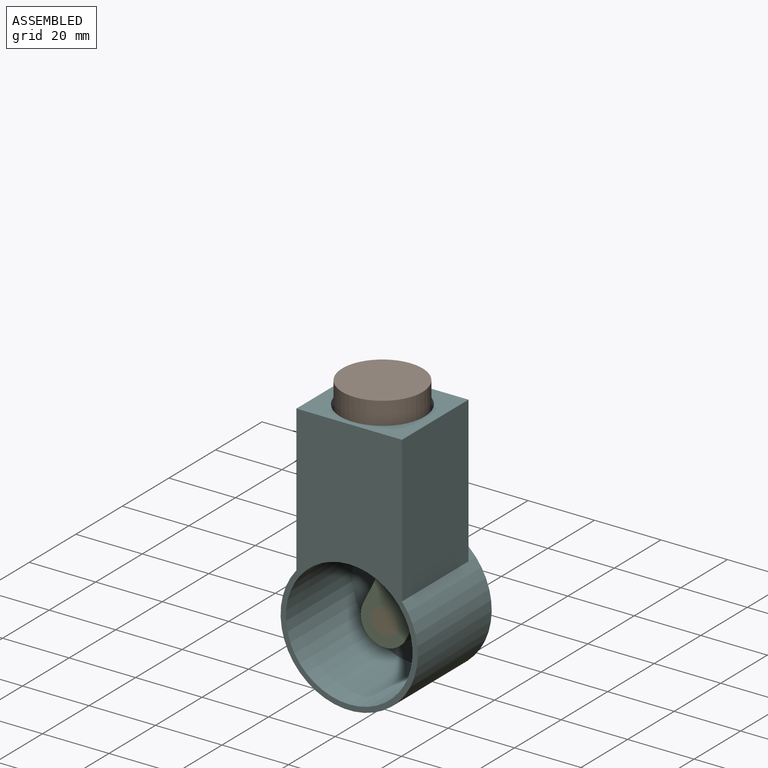
[diagram: assembled view]
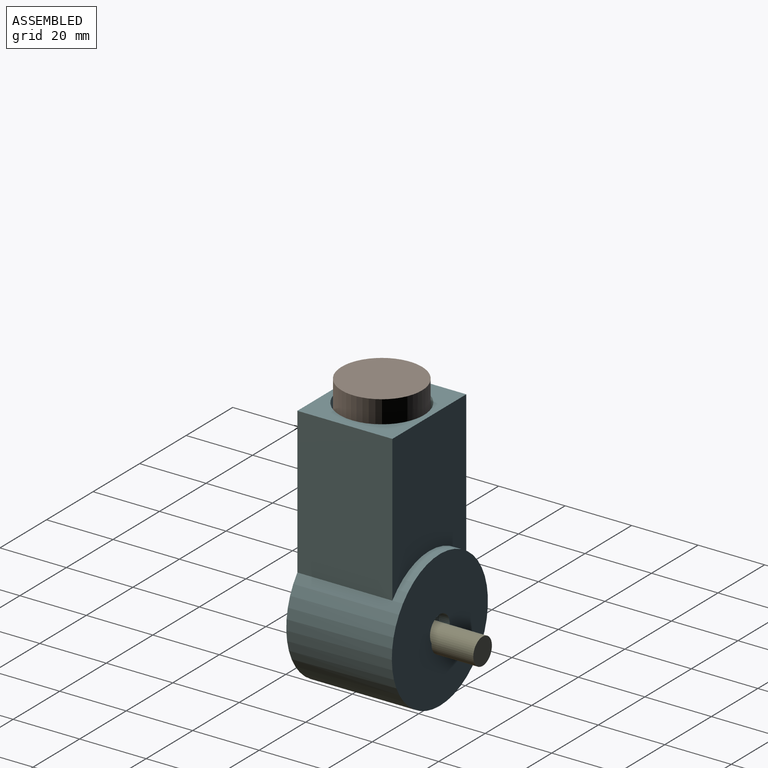
[diagram: assembled view, second angle]
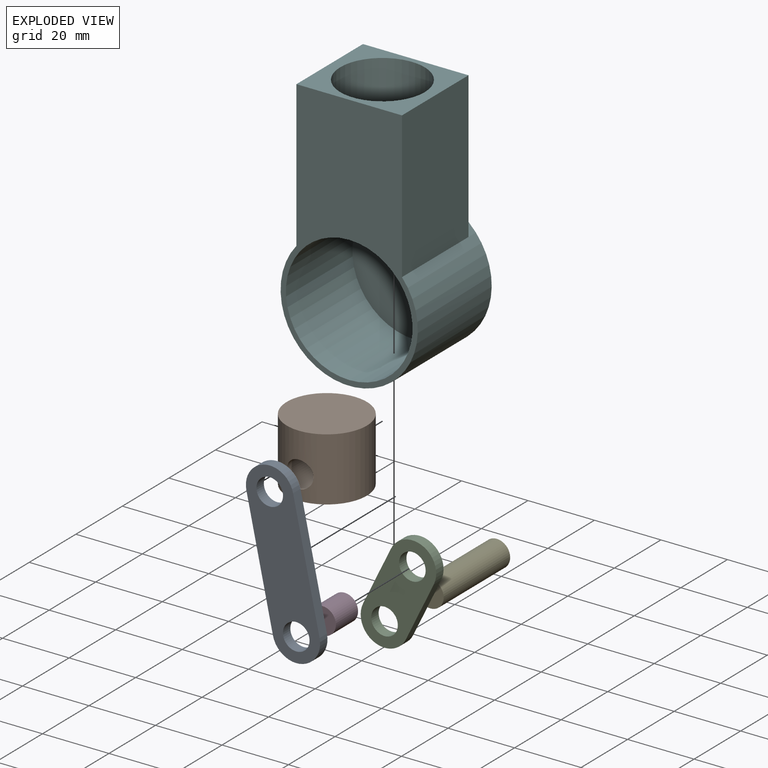
[diagram: exploded view]
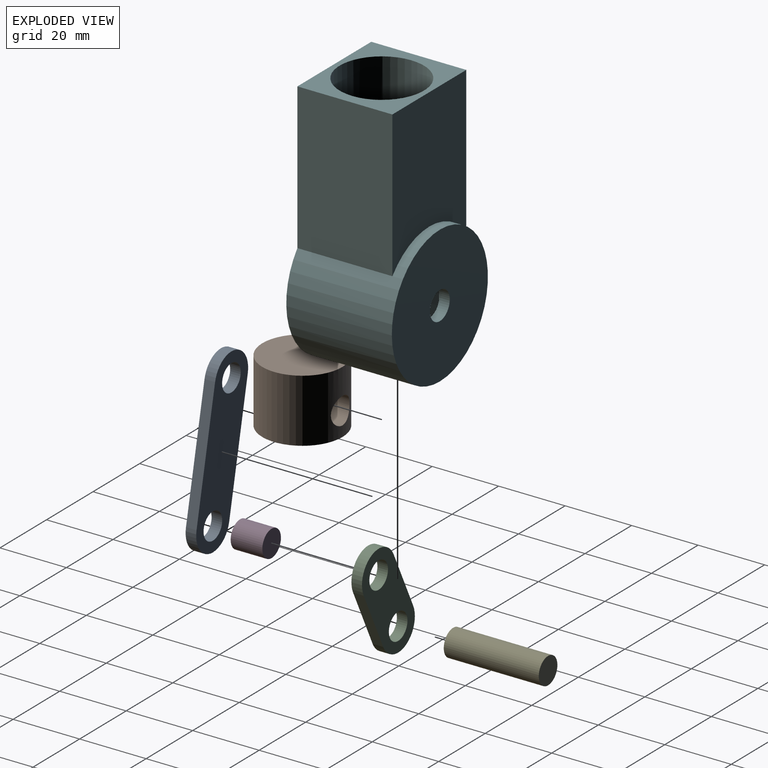
[diagram: exploded view, second angle]
ASSEMBLY  parts=6 mates=5
PART A: 8 faces, bbox 14.4x3.2x52.5 mm
  f0: plane 38.1x3.18mm, normal (-1,0,0), area 121mm2, adj f1,f4,f6,f7
  f1: cylinder r=7.18mm len=14.35mm, axis (0,1,0), area 71.6mm2, adj f0,f2,f6,f7
  f2: plane 38.1x3.18mm, normal (1,0,0), area 121mm2, adj f1,f4,f6,f7
  f3: cylinder r=4mm len=8mm, axis (0,1,0), area 79.8mm2, adj f6,f7
  f4: cylinder r=7.18mm len=14.35mm, axis (0,1,0), area 71.6mm2, adj f0,f2,f6,f7
  f5: cylinder r=4mm len=8mm, axis (0,1,0), area 79.8mm2, adj f6,f7
  f6: plane 52.45x14.35mm, normal (0,-1,0), area 608mm2, adj f0,f1,f2,f3,f4,f5
  f7: plane 52.45x14.35mm, normal (0,1,0), area 608mm2, adj f0,f1,f2,f3,f4,f5
PART B: 10 faces, bbox 24.1x24.1x19.1 mm
  f0: cylinder r=4mm len=10.35mm, axis (-1,0,0), area 251.6mm2, adj f1,f6
  f1: cylinder r=12.06mm len=24.13mm, axis (0,0,-1), area 1342.2mm2, adj f0,f2,f3,f4
  f2: plane 24.13x24.13mm, normal (0,0,1), area 457.3mm2, adj f1
  f3: plane 24.13x24.13mm, normal (0,0,-1), area 397.2mm2, adj f1,f5,f6,f7,f8
  f4: cylinder r=4mm len=10.35mm, axis (-1,0,0), area 251.6mm2, adj f1,f8
  f5: plane 12.7x3.43mm, normal (0,-1,0), area 43.5mm2, adj f3,f6,f8,f9
  f6: plane 17.54x12.7mm, normal (-1,0,0), area 172.4mm2, adj f0,f3,f5,f7,f9
  f7: plane 12.7x3.43mm, normal (0,1,0), area 43.5mm2, adj f3,f6,f8,f9
  f8: plane 17.54x12.7mm, normal (1,0,0), area 172.4mm2, adj f3,f4,f5,f7,f9
  f9: plane 17.54x3.43mm, normal (0,0,-1), area 60.1mm2, adj f5,f6,f7,f8
PART C: 8 faces, bbox 14.4x3.2x33.4 mm
  f0: plane 19.05x3.18mm, normal (-1,0,0), area 60.5mm2, adj f1,f3,f6,f7
  f1: cylinder r=7.17mm len=14.35mm, axis (0,1,0), area 71.6mm2, adj f0,f2,f6,f7
  f2: plane 19.05x3.18mm, normal (1,0,0), area 60.5mm2, adj f1,f3,f6,f7
  f3: cylinder r=7.17mm len=14.35mm, axis (0,1,0), area 71.6mm2, adj f0,f2,f6,f7
  f4: cylinder r=4mm len=8mm, axis (0,1,0), area 79.8mm2, adj f6,f7
  f5: cylinder r=4mm len=8mm, axis (0,1,0), area 79.8mm2, adj f6,f7
  f6: plane 33.4x14.35mm, normal (0,-1,0), area 334.6mm2, adj f0,f1,f2,f3,f4,f5
  f7: plane 33.4x14.35mm, normal (0,1,0), area 334.6mm2, adj f0,f1,f2,f3,f4,f5
PART D: 3 faces, bbox 8x9.5x8 mm
  f0: cylinder r=4mm len=9.53mm, axis (0,1,0), area 239.4mm2, adj f1,f2
  f1: plane 8x8mm, normal (0,-1,0), area 50.3mm2, adj f0
  f2: plane 8x8mm, normal (0,1,0), area 50.3mm2, adj f0
PART E: 3 faces, bbox 8x28.6x8 mm
  f0: cylinder r=4mm len=28.58mm, axis (0,-1,0), area 718.2mm2, adj f1,f2
  f1: plane 8x8mm, normal (0,1,0), area 50.3mm2, adj f0
  f2: plane 8x8mm, normal (0,-1,0), area 50.3mm2, adj f0
PART F: 11 faces, bbox 41.3x31.8x77.8 mm
  f0: plane 31.75x28.58mm, normal (0,0,1), area 400.5mm2, adj f1,f3,f4,f5,f7
  f1: plane 43.96x28.58mm, normal (-1,0,0), area 1256.2mm2, adj f0,f2,f4,f5
  f2: cylinder r=20.64mm len=41.28mm, axis (0,1,0), area 3081.9mm2, adj f1,f3,f4,f5,f9
  f3: plane 43.96x28.58mm, normal (1,0,0), area 1256.2mm2, adj f0,f2,f4,f5
  f4: plane 77.79x41.28mm, normal (0,-1,0), area 1429.3mm2, adj f0,f1,f2,f3,f6
  f5: plane 43.96x31.75mm, normal (0,1,0), area 1231.4mm2, adj f0,f1,f2,f3
  f6: cylinder r=19.05mm len=38.1mm, axis (0,1,0), area 2879.3mm2, adj f4,f7,f10
  f7: cylinder r=12.7mm len=42.95mm, axis (0,0,1), area 3226.7mm2, adj f0,f6
  f8: cylinder r=4.25mm len=8.5mm, axis (0,-1,0), area 84.8mm2, adj f9,f10
  f9: plane 41.28x41.28mm, normal (0,1,0), area 1281.3mm2, adj f2,f8
  f10: plane 38.1x38.1mm, normal (0,-1,0), area 1083.3mm2, adj f6,f8
PLACE A rot(axis=(0,-1,0),12.1deg) t=(-0.49,7.56,29.73)mm
PLACE B rot(axis=(0,0,-1),90deg) t=(-4.01,6.1,38.97)mm
PLACE C rot(axis=(0,-1,0),153.9deg) t=(3.96,10.73,8.89)mm
PLACE D rot(axis=(0,-1,0),153.9deg) t=(3.96,10.73,8.89)mm
PLACE E rot(axis=(0,-1,0),153.9deg) t=(3.96,10.73,8.89)mm
PLACE F t=(-4.01,20.38,13.41)mm fixed
MATE revolute A.f4 <-> B.f0  axis (0,-1,0) through (-4.01,4.38,46.15)mm
MATE slider B.f1 <-> F.f7  axis (0,0,1) through (-4.01,6.1,58.02)mm
MATE fastened E.f0 <-> C.f5  axis (0,-1,0) through (-4.41,7.56,-8.22)mm
MATE revolute A.f1 <-> C.f4  axis (0,1,0) through (3.96,7.56,8.89)mm
MATE fastened D.f0 <-> C.f1  axis (0,1,0) through (3.96,10.73,8.89)mm
